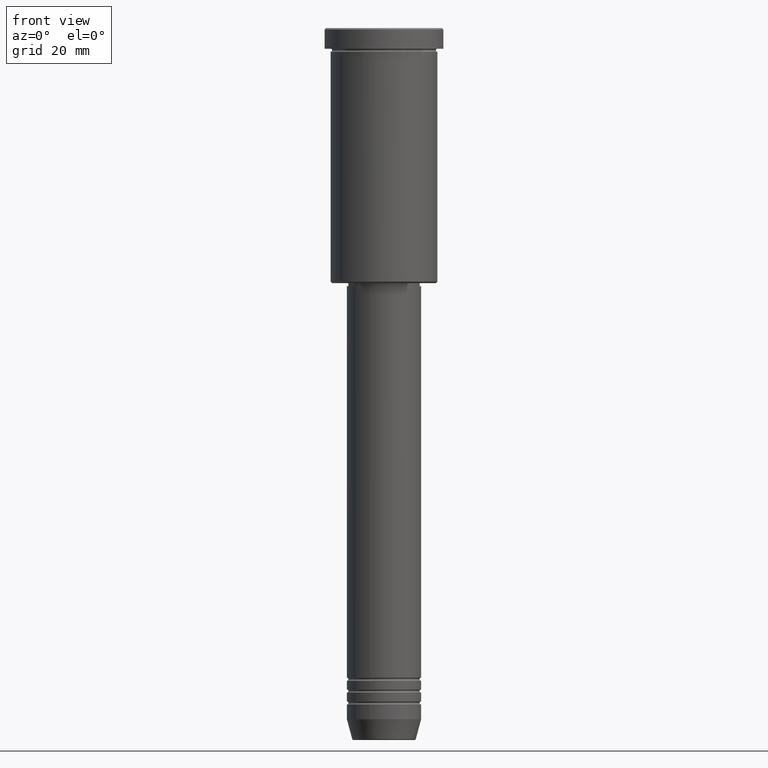
[diagram: clean part render]
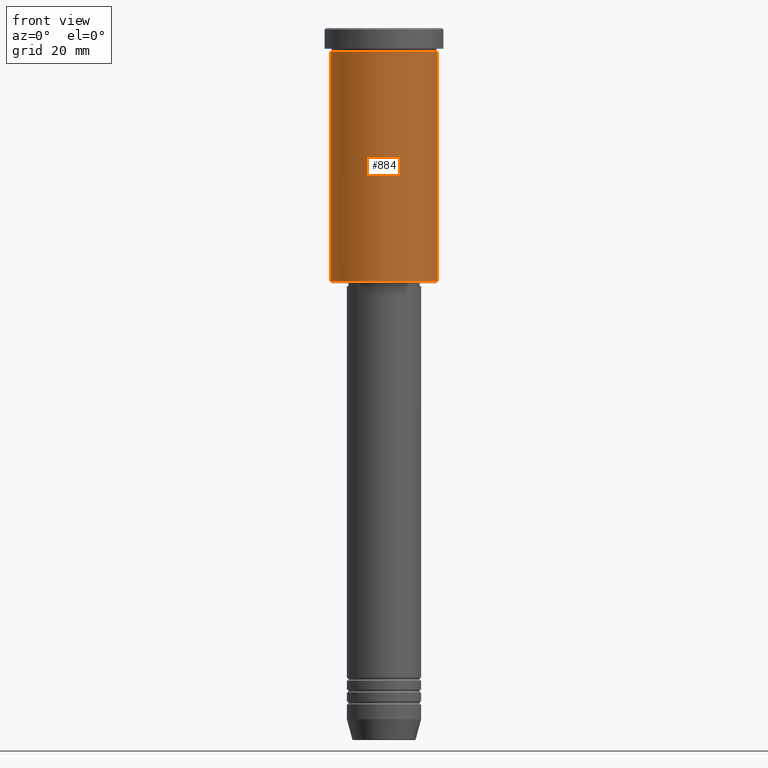
[diagram: same view with one face highlighted and labeled with its STEP entity id]
A machine part, front view. The second image highlights one B-rep face of the part: STEP entity #884.
In plain terms, the highlighted cylindrical surface (partial cylindrical patch) has radius 18 mm, axis along (-0, -0, 1).
Its self-contained STEP definition (entity closure, byte-faithful):
#83 = ORIENTED_EDGE ( 'NONE', *, *, #464, .T. ) ;
#86 = EDGE_CURVE ( 'NONE', #923, #916, #306, .T. ) ;
#121 = DIRECTION ( 'NONE',  ( -0.000000000000000000, -0.000000000000000000, 1.000000000000000000 ) ) ;
#123 = EDGE_CURVE ( 'NONE', #916, #256, #915, .T. ) ;
#167 = CARTESIAN_POINT ( 'NONE',  ( 18.00000000000000000, 0.000000000000000000, -7.999999999999996447 ) ) ;
#168 = FACE_OUTER_BOUND ( 'NONE', #434, .T. ) ;
#207 = DIRECTION ( 'NONE',  ( 1.000000000000000000, 0.000000000000000000, 0.000000000000000000 ) ) ;
#239 = LINE ( 'NONE', #676, #346 ) ;
#256 = VERTEX_POINT ( 'NONE', #167 ) ;
#306 = LINE ( 'NONE', #865, #444 ) ;
#339 = CARTESIAN_POINT ( 'NONE',  ( 0.000000000000000000, 0.000000000000000000, -85.49999999999992895 ) ) ;
#346 = VECTOR ( 'NONE', #696, 1000.000000000000000 ) ;
#400 = AXIS2_PLACEMENT_3D ( 'NONE', #954, #1019, #207 ) ;
#414 = CARTESIAN_POINT ( 'NONE',  ( -18.00000000000000000, 2.204364238465235428E-15, -7.999999999999996447 ) ) ;
#419 = CARTESIAN_POINT ( 'NONE',  ( -18.00000000000000000, 2.204364238465235428E-15, -85.49999999999992895 ) ) ;
#434 = EDGE_LOOP ( 'NONE', ( #647, #642, #83, #692 ) ) ;
#444 = VECTOR ( 'NONE', #121, 1000.000000000000000 ) ;
#451 = CYLINDRICAL_SURFACE ( 'NONE', #597, 18.00000000000000000 ) ;
#464 = EDGE_CURVE ( 'NONE', #1052, #256, #239, .T. ) ;
#524 = CARTESIAN_POINT ( 'NONE',  ( 18.00000000000000000, 0.000000000000000000, -85.49999999999992895 ) ) ;
#540 = CIRCLE ( 'NONE', #934, 18.00000000000000000 ) ;
#597 = AXIS2_PLACEMENT_3D ( 'NONE', #605, #695, #812 ) ;
#605 = CARTESIAN_POINT ( 'NONE',  ( 0.000000000000000000, 0.000000000000000000, 0.000000000000000000 ) ) ;
#612 = DIRECTION ( 'NONE',  ( -0.000000000000000000, -0.000000000000000000, 1.000000000000000000 ) ) ;
#642 = ORIENTED_EDGE ( 'NONE', *, *, #727, .T. ) ;
#647 = ORIENTED_EDGE ( 'NONE', *, *, #86, .F. ) ;
#676 = CARTESIAN_POINT ( 'NONE',  ( 18.00000000000000000, 0.000000000000000000, 0.000000000000000000 ) ) ;
#692 = ORIENTED_EDGE ( 'NONE', *, *, #123, .F. ) ;
#695 = DIRECTION ( 'NONE',  ( -0.000000000000000000, -0.000000000000000000, 1.000000000000000000 ) ) ;
#696 = DIRECTION ( 'NONE',  ( -0.000000000000000000, -0.000000000000000000, 1.000000000000000000 ) ) ;
#727 = EDGE_CURVE ( 'NONE', #923, #1052, #540, .T. ) ;
#812 = DIRECTION ( 'NONE',  ( 1.000000000000000000, 0.000000000000000000, 0.000000000000000000 ) ) ;
#865 = CARTESIAN_POINT ( 'NONE',  ( -18.00000000000000000, 2.204364238465235428E-15, 0.000000000000000000 ) ) ;
#883 = DIRECTION ( 'NONE',  ( -1.000000000000000000, 0.000000000000000000, 0.000000000000000000 ) ) ;
#884 = ADVANCED_FACE ( 'NONE', ( #168 ), #451, .T. ) ;
#915 = CIRCLE ( 'NONE', #400, 18.00000000000000000 ) ;
#916 = VERTEX_POINT ( 'NONE', #414 ) ;
#923 = VERTEX_POINT ( 'NONE', #419 ) ;
#934 = AXIS2_PLACEMENT_3D ( 'NONE', #339, #612, #883 ) ;
#954 = CARTESIAN_POINT ( 'NONE',  ( 0.000000000000000000, 0.000000000000000000, -7.999999999999996447 ) ) ;
#1019 = DIRECTION ( 'NONE',  ( -0.000000000000000000, -0.000000000000000000, 1.000000000000000000 ) ) ;
#1052 = VERTEX_POINT ( 'NONE', #524 ) ;